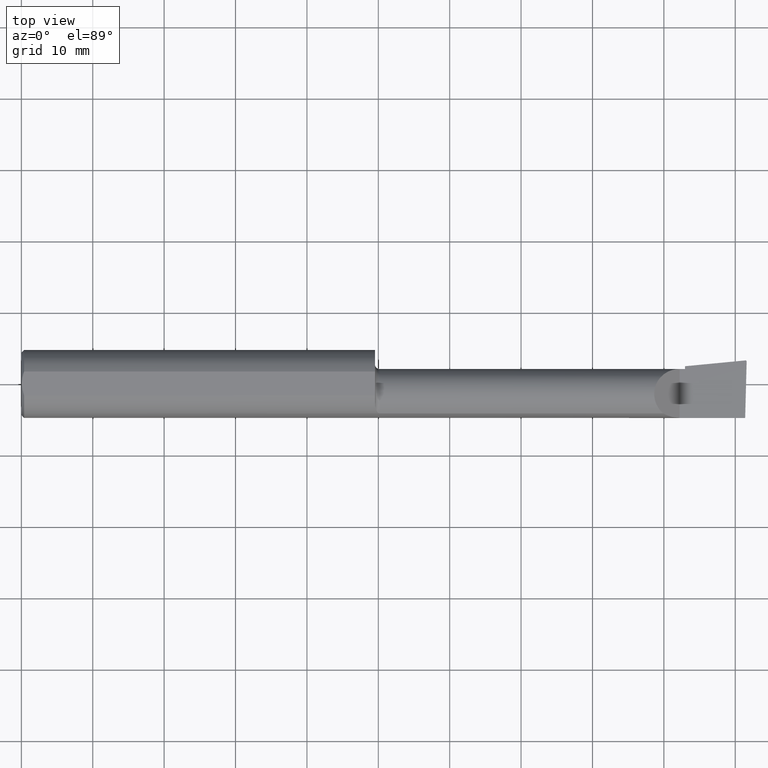
[diagram: clean part render]
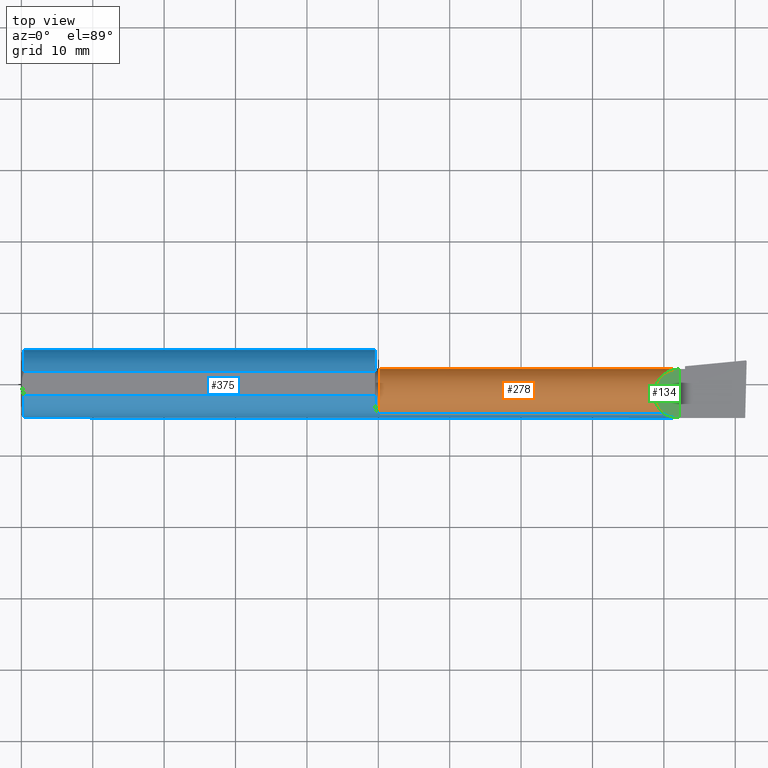
[diagram: same view with three faces highlighted in distinct colors, each labeled with its STEP entity id]
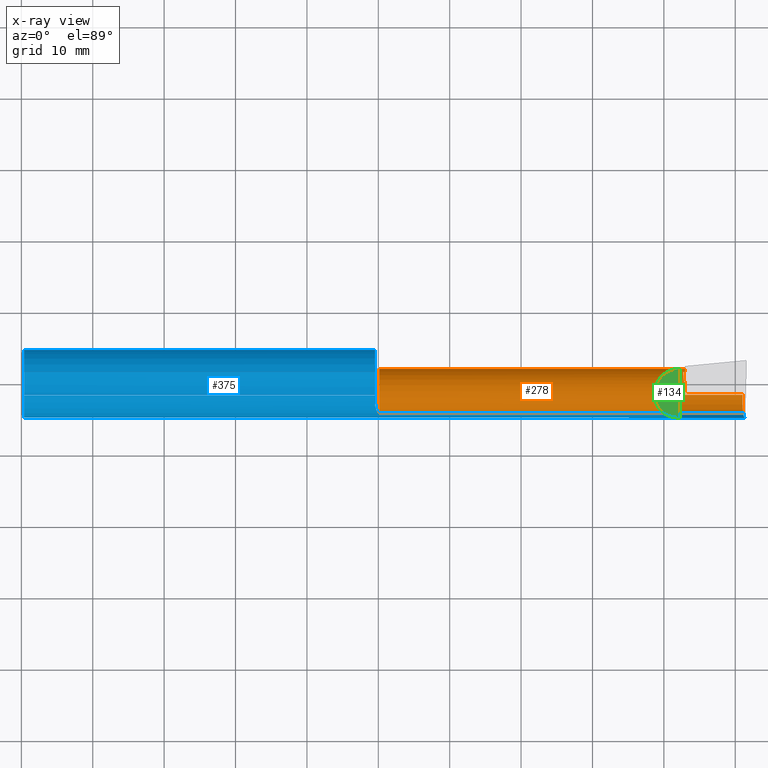
[diagram: x-ray of the same camera — body ghosted, the three highlighted faces saturated]
A machine part, top view with three faces highlighted in distinct colors.
The next image is the same camera in x-ray (body ghosted, the three faces saturated) — at least one of them is partly hidden behind the body in this view.
Their STEP definitions:

[orange] entity #278 — the highlighted cylindrical surface (edge-blend (fillet) strip) has radius 3.5573 mm, axis along (-1, -0, -0).
#2 = DIRECTION ( 'NONE',  ( -1.000000000000000000, 5.691349986800549142E-18, -0.000000000000000000 ) ) ;
#3 = ORIENTED_EDGE ( 'NONE', *, *, #478, .T. ) ;
#13 = AXIS2_PLACEMENT_3D ( 'NONE', #141, #158, #690 ) ;
#14 = LINE ( 'NONE', #670, #515 ) ;
#15 =( BOUNDED_CURVE ( )  B_SPLINE_CURVE ( 3, ( #481, #705, #602, #642 ),
 .UNSPECIFIED., .F., .T. ) 
 B_SPLINE_CURVE_WITH_KNOTS ( ( 4, 4 ),
 ( 0.4889314207010859170, 1.042347087928808147 ),
 .UNSPECIFIED. ) 
 CURVE ( )  GEOMETRIC_REPRESENTATION_ITEM ( )  RATIONAL_B_SPLINE_CURVE ( ( 1.000000000000000000, 0.9746400248777661313, 0.9746400248777661313, 1.000000000000000000 ) ) 
 REPRESENTATION_ITEM ( '' )  );
#20 = CARTESIAN_POINT ( 'NONE',  ( 3.659999999999999698, -0.05739999999999999963, 0.000000000000000000 ) ) ;
#23 = AXIS2_PLACEMENT_3D ( 'NONE', #244, #686, #195 ) ;
#30 = DIRECTION ( 'NONE',  ( 0.000000000000000000, -1.000000000000000000, 0.000000000000000000 ) ) ;
#36 = CIRCLE ( 'NONE', #13, 0.1400500000000002299 ) ;
#47 = ORIENTED_EDGE ( 'NONE', *, *, #142, .F. ) ;
#54 = CARTESIAN_POINT ( 'NONE',  ( 3.475085956200449022, 0.08265000000000018165, 0.1549140437995492336 ) ) ;
#55 = CARTESIAN_POINT ( 'NONE',  ( 3.977873865042411250, -0.05739999999999999963, -0.1400500000000000633 ) ) ;
#58 = LINE ( 'NONE', #177, #580 ) ;
#61 = EDGE_CURVE ( 'NONE', #304, #289, #58, .T. ) ;
#66 = CARTESIAN_POINT ( 'NONE',  ( 3.977873865042411250, -0.05739999999999999963, -0.1400500000000000633 ) ) ;
#71 = CARTESIAN_POINT ( 'NONE',  ( 1.975000000000000089, -0.1635956445993032859, -0.09130436773856125121 ) ) ;
#80 = FACE_OUTER_BOUND ( 'NONE', #436, .T. ) ;
#81 = EDGE_CURVE ( 'NONE', #208, #94, #182, .T. ) ;
#92 = CARTESIAN_POINT ( 'NONE',  ( 1.975000000000000089, -0.1635956445993030084, 0.09130436773856158428 ) ) ;
#94 = VERTEX_POINT ( 'NONE', #55 ) ;
#107 = CARTESIAN_POINT ( 'NONE',  ( 3.977925907309857845, -0.1365595166907234981, -0.1227499502647109025 ) ) ;
#109 = LINE ( 'NONE', #275, #567 ) ;
#114 = CARTESIAN_POINT ( 'NONE',  ( 1.975000000000000089, -0.05740000000000000657, 0.000000000000000000 ) ) ;
#118 = EDGE_CURVE ( 'NONE', #392, #485, #132, .T. ) ;
#131 = CIRCLE ( 'NONE', #509, 0.1400499999999998413 ) ;
#132 =( BOUNDED_CURVE ( )  B_SPLINE_CURVE ( 3, ( #334, #507, #456, #553 ),
 .UNSPECIFIED., .F., .F. ) 
 B_SPLINE_CURVE_WITH_KNOTS ( ( 4, 4 ),
 ( 3.403716554974003827, 3.413688882750591347 ),
 .UNSPECIFIED. ) 
 CURVE ( )  GEOMETRIC_REPRESENTATION_ITEM ( )  RATIONAL_B_SPLINE_CURVE ( ( 1.000000000000000000, 0.9999917127403961103, 0.9999917127403961103, 1.000000000000000000 ) ) 
 REPRESENTATION_ITEM ( '' )  );
#141 = CARTESIAN_POINT ( 'NONE',  ( 3.659999999999999698, -0.05739999999999999963, 0.000000000000000000 ) ) ;
#142 = EDGE_CURVE ( 'NONE', #94, #564, #14, .T. ) ;
#148 = EDGE_CURVE ( 'NONE', #268, #247, #626, .T. ) ;
#151 = CARTESIAN_POINT ( 'NONE',  ( 3.538695632261437130, -0.1635956445993027863, 0.09130436773856213939 ) ) ;
#158 = DIRECTION ( 'NONE',  ( -1.000000000000000000, -4.268512490100411279E-18, -0.000000000000000000 ) ) ;
#160 = ORIENTED_EDGE ( 'NONE', *, *, #239, .T. ) ;
#163 = AXIS2_PLACEMENT_3D ( 'NONE', #20, #238, #30 ) ;
#165 = LINE ( 'NONE', #613, #308 ) ;
#177 = CARTESIAN_POINT ( 'NONE',  ( 2.817500000000000338, -0.1635956445993029806, 0.09130436773856190347 ) ) ;
#182 =( BOUNDED_CURVE ( )  B_SPLINE_CURVE ( 3, ( #617, #107, #406, #66 ),
 .UNSPECIFIED., .F., .F. ) 
 B_SPLINE_CURVE_WITH_KNOTS ( ( 4, 4 ),
 ( 5.632580117768156036, 6.493234751459283416 ),
 .UNSPECIFIED. ) 
 CURVE ( )  GEOMETRIC_REPRESENTATION_ITEM ( )  RATIONAL_B_SPLINE_CURVE ( ( 1.000000000000000000, 0.9392195014330944058, 0.9392195014330944058, 1.000000000000000000 ) ) 
 REPRESENTATION_ITEM ( '' )  );
#195 = DIRECTION ( 'NONE',  ( 4.268512490100412049E-18, -1.000000000000000000, 0.000000000000000000 ) ) ;
#204 = ORIENTED_EDGE ( 'NONE', *, *, #454, .T. ) ;
#208 = VERTEX_POINT ( 'NONE', #235 ) ;
#223 = CARTESIAN_POINT ( 'NONE',  ( 3.656639924654159213, 0.06539171466162843616, -0.06735725908305588427 ) ) ;
#235 = CARTESIAN_POINT ( 'NONE',  ( 3.981080296960509024, -0.1635956445993029806, -0.09130436773856190347 ) ) ;
#238 = DIRECTION ( 'NONE',  ( -1.000000000000000000, -4.268512490100411279E-18, -0.000000000000000000 ) ) ;
#239 = EDGE_CURVE ( 'NONE', #284, #247, #331, .T. ) ;
#244 = CARTESIAN_POINT ( 'NONE',  ( 0.000000000000000000, -0.05740000000000001351, 0.000000000000000000 ) ) ;
#247 = VERTEX_POINT ( 'NONE', #419 ) ;
#260 = ORIENTED_EDGE ( 'NONE', *, *, #81, .F. ) ;
#266 = VERTEX_POINT ( 'NONE', #582 ) ;
#268 = VERTEX_POINT ( 'NONE', #459 ) ;
#275 = CARTESIAN_POINT ( 'NONE',  ( -5.978051742385470281E-19, 0.08265000000000000124, 1.790477306702064235E-16 ) ) ;
#277 = ORIENTED_EDGE ( 'NONE', *, *, #118, .F. ) ;
#278 = ADVANCED_FACE ( 'NONE', ( #80 ), #303, .T. ) ;
#279 = CARTESIAN_POINT ( 'NONE',  ( 3.629999999999999893, 0.08264999999999990410, -1.383850883036508279E-16 ) ) ;
#282 = DIRECTION ( 'NONE',  ( -1.000000000000000000, -4.268512490100411279E-18, -0.000000000000000000 ) ) ;
#284 = VERTEX_POINT ( 'NONE', #533 ) ;
#285 = CARTESIAN_POINT ( 'NONE',  ( 3.538695632261437130, -0.1635956445993027863, 0.09130436773856213939 ) ) ;
#287 = CARTESIAN_POINT ( 'NONE',  ( 3.653159806206770721, 0.06582018291673077948, -0.06657020401570135082 ) ) ;
#289 = VERTEX_POINT ( 'NONE', #151 ) ;
#291 = DIRECTION ( 'NONE',  ( 1.000000000000000000, 4.268512490100411279E-18, 0.000000000000000000 ) ) ;
#303 = CYLINDRICAL_SURFACE ( 'NONE', #23, 0.1400500000000000078 ) ;
#304 = VERTEX_POINT ( 'NONE', #92 ) ;
#308 = VECTOR ( 'NONE', #671, 39.37007874015748143 ) ;
#313 = ORIENTED_EDGE ( 'NONE', *, *, #148, .F. ) ;
#322 = EDGE_CURVE ( 'NONE', #268, #485, #15, .T. ) ;
#331 = CIRCLE ( 'NONE', #163, 0.1400500000000002299 ) ;
#334 = CARTESIAN_POINT ( 'NONE',  ( 3.659999999999999698, 0.01441505128072246775, -0.1202356058309985848 ) ) ;
#348 = DIRECTION ( 'NONE',  ( 0.000000000000000000, -1.000000000000000000, 0.000000000000000000 ) ) ;
#358 = EDGE_CURVE ( 'NONE', #392, #564, #36, .T. ) ;
#392 = VERTEX_POINT ( 'NONE', #655 ) ;
#395 = CARTESIAN_POINT ( 'NONE',  ( 3.659999999999999698, 0.06495571228477972636, -0.06814016562413273415 ) ) ;
#406 = CARTESIAN_POINT ( 'NONE',  ( 3.976787929832031221, -0.09887019258091177265, -0.1400500000000001188 ) ) ;
#412 =( BOUNDED_CURVE ( )  B_SPLINE_CURVE ( 3, ( #285, #557, #54, #279 ),
 .UNSPECIFIED., .F., .T. ) 
 B_SPLINE_CURVE_WITH_KNOTS ( ( 4, 4 ),
 ( 5.422530673488460629, 7.853981633974483678 ),
 .UNSPECIFIED. ) 
 CURVE ( )  GEOMETRIC_REPRESENTATION_ITEM ( )  RATIONAL_B_SPLINE_CURVE ( ( 1.000000000000000000, 0.5651045289226865886, 0.5651045289226865886, 1.000000000000000000 ) ) 
 REPRESENTATION_ITEM ( '' )  );
#419 = CARTESIAN_POINT ( 'NONE',  ( 3.659999999999999698, 0.06495571228477972636, -0.06814016562413273415 ) ) ;
#424 = ORIENTED_EDGE ( 'NONE', *, *, #545, .F. ) ;
#436 = EDGE_LOOP ( 'NONE', ( #260, #438, #424, #593, #204, #3, #160, #313, #694, #277, #550, #47 ) ) ;
#438 = ORIENTED_EDGE ( 'NONE', *, *, #536, .T. ) ;
#454 = EDGE_CURVE ( 'NONE', #289, #266, #412, .T. ) ;
#456 = CARTESIAN_POINT ( 'NONE',  ( 3.656476415630202315, 0.01361451005324048474, -0.1207110541441177992 ) ) ;
#459 = CARTESIAN_POINT ( 'NONE',  ( 3.649559965233992287, 0.06624107758111216770, -0.06577907292278788176 ) ) ;
#478 = EDGE_CURVE ( 'NONE', #266, #284, #109, .T. ) ;
#481 = CARTESIAN_POINT ( 'NONE',  ( 3.649559965233992287, 0.06624107758111216770, -0.06577907292278788176 ) ) ;
#485 = VERTEX_POINT ( 'NONE', #511 ) ;
#507 = CARTESIAN_POINT ( 'NONE',  ( 3.658254417281639803, 0.01401537333401180543, -0.1204743278970654419 ) ) ;
#509 = AXIS2_PLACEMENT_3D ( 'NONE', #114, #282, #348 ) ;
#511 = CARTESIAN_POINT ( 'NONE',  ( 3.654666039249971909, 0.01321247140458279429, -0.1209457786867197543 ) ) ;
#515 = VECTOR ( 'NONE', #2, 39.37007874015748143 ) ;
#533 = CARTESIAN_POINT ( 'NONE',  ( 3.659999999999999698, 0.08265000000000023717, 1.790477306702066946E-16 ) ) ;
#536 = EDGE_CURVE ( 'NONE', #208, #604, #165, .T. ) ;
#545 = EDGE_CURVE ( 'NONE', #304, #604, #131, .T. ) ;
#550 = ORIENTED_EDGE ( 'NONE', *, *, #358, .T. ) ;
#553 = CARTESIAN_POINT ( 'NONE',  ( 3.654666039249971909, 0.01321247140458279429, -0.1209457786867197543 ) ) ;
#557 = CARTESIAN_POINT ( 'NONE',  ( 3.421229036482944075, -0.06260079402492399470, 0.2087709635170538480 ) ) ;
#564 = VERTEX_POINT ( 'NONE', #624 ) ;
#565 = DIRECTION ( 'NONE',  ( 1.000000000000000000, 4.268512490100411279E-18, 0.000000000000000000 ) ) ;
#566 = CARTESIAN_POINT ( 'NONE',  ( 3.649559965233992287, 0.06624107758111216770, -0.06577907292278788176 ) ) ;
#567 = VECTOR ( 'NONE', #565, 39.37007874015748143 ) ;
#580 = VECTOR ( 'NONE', #291, 39.37007874015748143 ) ;
#582 = CARTESIAN_POINT ( 'NONE',  ( 3.629999999999999893, 0.08264999999999990410, -1.383850883036508279E-16 ) ) ;
#593 = ORIENTED_EDGE ( 'NONE', *, *, #61, .T. ) ;
#602 = CARTESIAN_POINT ( 'NONE',  ( 3.652489847161463299, 0.03581309036639279686, -0.1077507289917616212 ) ) ;
#604 = VERTEX_POINT ( 'NONE', #71 ) ;
#613 = CARTESIAN_POINT ( 'NONE',  ( 2.817500000000000338, -0.1635956445993029806, -0.09130436773856190347 ) ) ;
#617 = CARTESIAN_POINT ( 'NONE',  ( 3.981080296960509024, -0.1635956445993029806, -0.09130436773856190347 ) ) ;
#624 = CARTESIAN_POINT ( 'NONE',  ( 3.659999999999999698, -0.05739999999999999963, -0.1400500000000000633 ) ) ;
#626 =( BOUNDED_CURVE ( )  B_SPLINE_CURVE ( 3, ( #566, #287, #223, #395 ),
 .UNSPECIFIED., .F., .F. ) 
 B_SPLINE_CURVE_WITH_KNOTS ( ( 4, 4 ),
 ( 2.860273215522870061, 2.879468752205585513 ),
 .UNSPECIFIED. ) 
 CURVE ( )  GEOMETRIC_REPRESENTATION_ITEM ( )  RATIONAL_B_SPLINE_CURVE ( ( 1.000000000000000000, 0.9999692945166647196, 0.9999692945166647196, 1.000000000000000000 ) ) 
 REPRESENTATION_ITEM ( '' )  );
#642 = CARTESIAN_POINT ( 'NONE',  ( 3.654666039249971909, 0.01321247140458279429, -0.1209457786867197543 ) ) ;
#655 = CARTESIAN_POINT ( 'NONE',  ( 3.659999999999999698, 0.01441505128072246775, -0.1202356058309985848 ) ) ;
#670 = CARTESIAN_POINT ( 'NONE',  ( 4.000000000000000000, -0.05739999999999999963, -0.1400500000000000633 ) ) ;
#671 = DIRECTION ( 'NONE',  ( -1.000000000000000000, -4.268512490100411279E-18, -0.000000000000000000 ) ) ;
#686 = DIRECTION ( 'NONE',  ( -1.000000000000000000, -4.268512490100411279E-18, -0.000000000000000000 ) ) ;
#690 = DIRECTION ( 'NONE',  ( 0.000000000000000000, -1.000000000000000000, 0.000000000000000000 ) ) ;
#694 = ORIENTED_EDGE ( 'NONE', *, *, #322, .T. ) ;
#705 = CARTESIAN_POINT ( 'NONE',  ( 3.650743536083989049, 0.05394922433140206947, -0.08888335082963778888 ) ) ;

[blue] entity #375 — the highlighted cylindrical surface (edge-blend (fillet) strip) has radius 4.7587 mm, axis along (-1, -0, -0).
#1 = VERTEX_POINT ( 'NONE', #52 ) ;
#4 = CARTESIAN_POINT ( 'NONE',  ( 1.970903862568969656, -0.1628809688430622182, 0.09258733509388467064 ) ) ;
#17 = CARTESIAN_POINT ( 'NONE',  ( 1.950000000000000178, -0.09715400696864148755, -0.1601908905959922580 ) ) ;
#21 = DIRECTION ( 'NONE',  ( -1.000000000000000000, -0.000000000000000000, -0.000000000000000000 ) ) ;
#34 = DIRECTION ( 'NONE',  ( -1.000000000000000000, -0.000000000000000000, -0.000000000000000000 ) ) ;
#42 = CARTESIAN_POINT ( 'NONE',  ( 1.950000000000000178, -0.09715400696864148755, 0.1601908905959922580 ) ) ;
#51 = CARTESIAN_POINT ( 'NONE',  ( 1.950000000000000178, -0.06597272163553666302, 0.1753499999999999781 ) ) ;
#52 = CARTESIAN_POINT ( 'NONE',  ( 1.950000000000000178, -0.09715400696864148755, 0.1601908905959922580 ) ) ;
#56 = ORIENTED_EDGE ( 'NONE', *, *, #588, .T. ) ;
#57 = CARTESIAN_POINT ( 'NONE',  ( 1.953025912205684111, -0.1310442973014116497, 0.1341609063345041430 ) ) ;
#58 = LINE ( 'NONE', #177, #580 ) ;
#60 = LINE ( 'NONE', #495, #123 ) ;
#61 = EDGE_CURVE ( 'NONE', #304, #289, #58, .T. ) ;
#65 = CARTESIAN_POINT ( 'NONE',  ( 1.975000000000000089, -0.1635956445993030084, 0.09130436773856158428 ) ) ;
#71 = CARTESIAN_POINT ( 'NONE',  ( 1.975000000000000089, -0.1635956445993032859, -0.09130436773856125121 ) ) ;
#73 = CARTESIAN_POINT ( 'NONE',  ( 1.967975941902153414, -0.1612443294219081946, -0.09540922431498183309 ) ) ;
#74 = EDGE_CURVE ( 'NONE', #99, #289, #631, .T. ) ;
#91 = VERTEX_POINT ( 'NONE', #563 ) ;
#92 = CARTESIAN_POINT ( 'NONE',  ( 1.975000000000000089, -0.1635956445993030084, 0.09130436773856158428 ) ) ;
#99 = VERTEX_POINT ( 'NONE', #171 ) ;
#100 = VECTOR ( 'NONE', #407, 39.37007874015748143 ) ;
#101 = CARTESIAN_POINT ( 'NONE',  ( 1.950000000000000178, 0.000000000000000000, 0.000000000000000000 ) ) ;
#116 = CARTESIAN_POINT ( 'NONE',  ( 3.538695632261437130, -0.1635956445993027863, 0.09130436773856213939 ) ) ;
#120 = CARTESIAN_POINT ( 'NONE',  ( 3.629999999999999893, -0.1873499999999999888, -1.383850883036508279E-16 ) ) ;
#121 = CARTESIAN_POINT ( 'NONE',  ( 1.958072954143140310, -0.1479074971576201103, 0.1152872342625229363 ) ) ;
#123 = VECTOR ( 'NONE', #219, 39.37007874015748143 ) ;
#125 = CARTESIAN_POINT ( 'NONE',  ( 0.000000000000000000, -0.06597272163553657975, 0.1753499999999999781 ) ) ;
#126 = CARTESIAN_POINT ( 'NONE',  ( 1.975000000000000089, -0.1635956445993032859, -0.09130436773856125121 ) ) ;
#130 = CARTESIAN_POINT ( 'NONE',  ( 1.953041727949558215, -0.1311116946065054023, -0.1340922927843367918 ) ) ;
#136 = LINE ( 'NONE', #521, #218 ) ;
#137 = VERTEX_POINT ( 'NONE', #350 ) ;
#143 = ORIENTED_EDGE ( 'NONE', *, *, #380, .T. ) ;
#151 = CARTESIAN_POINT ( 'NONE',  ( 3.538695632261437130, -0.1635956445993027863, 0.09130436773856213939 ) ) ;
#165 = LINE ( 'NONE', #613, #308 ) ;
#171 = CARTESIAN_POINT ( 'NONE',  ( 3.629999999999999893, -0.1873499999999999888, -1.383850883036508279E-16 ) ) ;
#174 = CARTESIAN_POINT ( 'NONE',  ( 1.962204638458736383, -0.1550630761760524445, 0.1052254855377559722 ) ) ;
#176 = CARTESIAN_POINT ( 'NONE',  ( 1.950000000000000178, 0.06597272163553663527, 0.1753499999999999781 ) ) ;
#177 = CARTESIAN_POINT ( 'NONE',  ( 2.817500000000000338, -0.1635956445993029806, 0.09130436773856190347 ) ) ;
#178 = CARTESIAN_POINT ( 'NONE',  ( 0.01499999999999999424, 0.000000000000000000, 0.000000000000000000 ) ) ;
#188 = DIRECTION ( 'NONE',  ( 0.000000000000000000, 0.000000000000000000, 1.000000000000000000 ) ) ;
#190 = CARTESIAN_POINT ( 'NONE',  ( 1.956145841430604770, -0.1426194794824340306, -0.1217813759115465855 ) ) ;
#191 = AXIS2_PLACEMENT_3D ( 'NONE', #178, #21, #188 ) ;
#198 = AXIS2_PLACEMENT_3D ( 'NONE', #539, #34, #205 ) ;
#201 = CARTESIAN_POINT ( 'NONE',  ( 1.949999999999999734, -0.1045012500212956219, 0.1557348687830033274 ) ) ;
#202 = EDGE_CURVE ( 'NONE', #604, #654, #386, .T. ) ;
#205 = DIRECTION ( 'NONE',  ( 0.000000000000000000, 0.000000000000000000, 1.000000000000000000 ) ) ;
#208 = VERTEX_POINT ( 'NONE', #235 ) ;
#209 = DIRECTION ( 'NONE',  ( 0.000000000000000000, 1.000000000000000000, 0.000000000000000000 ) ) ;
#213 = ORIENTED_EDGE ( 'NONE', *, *, #61, .F. ) ;
#214 = DIRECTION ( 'NONE',  ( 1.000000000000000000, 4.268512490100411279E-18, 0.000000000000000000 ) ) ;
#218 = VECTOR ( 'NONE', #628, 39.37007874015748143 ) ;
#219 = DIRECTION ( 'NONE',  ( 1.000000000000000000, 0.000000000000000000, 0.000000000000000000 ) ) ;
#221 = CARTESIAN_POINT ( 'NONE',  ( 1.966855994529494778, -0.1603175578889970976, 0.09696363432848430219 ) ) ;
#231 = AXIS2_PLACEMENT_3D ( 'NONE', #257, #598, #695 ) ;
#232 = CARTESIAN_POINT ( 'NONE',  ( 1.950000000000000178, -0.09715400696864148755, -0.1601908905959922580 ) ) ;
#235 = CARTESIAN_POINT ( 'NONE',  ( 3.981080296960509024, -0.1635956445993029806, -0.09130436773856190347 ) ) ;
#257 = CARTESIAN_POINT ( 'NONE',  ( 1.950000000000000178, 0.000000000000000000, 0.000000000000000000 ) ) ;
#261 = CYLINDRICAL_SURFACE ( 'NONE', #198, 0.1873499999999999888 ) ;
#271 = CARTESIAN_POINT ( 'NONE',  ( 1.972800914500665304, -0.1635956445997549802, 0.09130436773775216230 ) ) ;
#280 = CARTESIAN_POINT ( 'NONE',  ( 3.597861799102314073, -0.1873499999999999888, 0.03213820089768522348 ) ) ;
#289 = VERTEX_POINT ( 'NONE', #151 ) ;
#291 = DIRECTION ( 'NONE',  ( 1.000000000000000000, 4.268512490100411279E-18, 0.000000000000000000 ) ) ;
#292 = CIRCLE ( 'NONE', #679, 0.1873499999999999888 ) ;
#294 = CARTESIAN_POINT ( 'NONE',  ( 1.958068207442171582, -0.1478915270140212235, -0.1153063024254922520 ) ) ;
#296 = EDGE_CURVE ( 'NONE', #654, #544, #445, .T. ) ;
#301 = CARTESIAN_POINT ( 'NONE',  ( 1.966814909379089205, -0.1602818635245159828, -0.09702252612905271079 ) ) ;
#304 = VERTEX_POINT ( 'NONE', #92 ) ;
#308 = VECTOR ( 'NONE', #671, 39.37007874015748143 ) ;
#319 = B_SPLINE_CURVE_WITH_KNOTS ( 'NONE', 3,
 ( #42, #201, #405, #669, #57, #609, #121, #174, #338, #221, #562, #4, #271, #65 ),
 .UNSPECIFIED., .F., .F.,
 ( 4, 2, 2, 2, 2, 2, 4 ),
 ( 0.0002471551878304244871, 0.0008987327522055642889, 0.001550310316580703982, 0.002201887880955843892, 0.002527676663143413414, 0.002690571054237198608, 0.002853465445330983803 ),
 .UNSPECIFIED. ) ;
#321 = ORIENTED_EDGE ( 'NONE', *, *, #390, .F. ) ;
#328 = ORIENTED_EDGE ( 'NONE', *, *, #449, .F. ) ;
#330 = CARTESIAN_POINT ( 'NONE',  ( 0.01499999999999999424, 0.000000000000000000, 0.000000000000000000 ) ) ;
#335 = EDGE_CURVE ( 'NONE', #551, #1, #650, .T. ) ;
#338 = CARTESIAN_POINT ( 'NONE',  ( 1.963764108097883376, -0.1573043405450772758, 0.1018329020719633826 ) ) ;
#350 = CARTESIAN_POINT ( 'NONE',  ( 0.01499999999999999424, 0.06597272163553663527, 0.1753499999999999781 ) ) ;
#357 = CARTESIAN_POINT ( 'NONE',  ( 1.950384441902395460, -0.1115101367984842329, -0.1507946173152221458 ) ) ;
#361 = LINE ( 'NONE', #125, #100 ) ;
#365 = CARTESIAN_POINT ( 'NONE',  ( 1.972779935319433742, -0.1635956445993032027, -0.09130436773856144550 ) ) ;
#368 = CARTESIAN_POINT ( 'NONE',  ( 3.984117089522338340, -0.1792580844883770730, -0.06324101202936152633 ) ) ;
#375 = ADVANCED_FACE ( 'NONE', ( #490 ), #261, .T. ) ;
#376 = ORIENTED_EDGE ( 'NONE', *, *, #482, .T. ) ;
#380 = EDGE_CURVE ( 'NONE', #208, #704, #701, .T. ) ;
#385 = DIRECTION ( 'NONE',  ( 0.000000000000000000, 0.000000000000000000, 1.000000000000000000 ) ) ;
#386 = B_SPLINE_CURVE_WITH_KNOTS ( 'NONE', 3,
 ( #126, #365, #571, #73, #301, #522, #467, #294, #190, #130, #413, #357, #574, #17 ),
 .UNSPECIFIED., .F., .F.,
 ( 4, 2, 2, 2, 2, 2, 4 ),
 ( 1.968340875534775581E-07, 0.0001667114270246259429, 0.0003332260199616984158, 0.0006662552058358424401, 0.001332313577584123224, 0.001998371949332404009, 0.002664430321080684793 ),
 .UNSPECIFIED. ) ;
#390 = EDGE_CURVE ( 'NONE', #501, #91, #292, .T. ) ;
#405 = CARTESIAN_POINT ( 'NONE',  ( 1.950383728133730399, -0.1114837668894153866, 0.1508119329971094880 ) ) ;
#407 = DIRECTION ( 'NONE',  ( -1.000000000000000000, -0.000000000000000000, -0.000000000000000000 ) ) ;
#413 = CARTESIAN_POINT ( 'NONE',  ( 1.951903396790307443, -0.1248165254919064715, -0.1399798634953943743 ) ) ;
#420 = EDGE_LOOP ( 'NONE', ( #422, #143, #56, #496, #213, #328, #689, #601, #321, #715, #376, #638, #505 ) ) ;
#422 = ORIENTED_EDGE ( 'NONE', *, *, #536, .F. ) ;
#425 = DIRECTION ( 'NONE',  ( -1.000000000000000000, -0.000000000000000000, -0.000000000000000000 ) ) ;
#430 = CARTESIAN_POINT ( 'NONE',  ( 3.981080296960509024, -0.1635956445993029806, -0.09130436773856190347 ) ) ;
#445 = CIRCLE ( 'NONE', #231, 0.1873499999999999888 ) ;
#449 = EDGE_CURVE ( 'NONE', #1, #304, #319, .T. ) ;
#467 = CARTESIAN_POINT ( 'NONE',  ( 1.962184598714912243, -0.1550322129197698184, -0.1052705638704078961 ) ) ;
#482 = EDGE_CURVE ( 'NONE', #137, #544, #60, .T. ) ;
#490 = FACE_OUTER_BOUND ( 'NONE', #420, .T. ) ;
#495 = CARTESIAN_POINT ( 'NONE',  ( 0.000000000000000000, 0.06597272163553663527, 0.1753499999999999781 ) ) ;
#496 = ORIENTED_EDGE ( 'NONE', *, *, #74, .T. ) ;
#501 = VERTEX_POINT ( 'NONE', #658 ) ;
#505 = ORIENTED_EDGE ( 'NONE', *, *, #202, .F. ) ;
#518 = CARTESIAN_POINT ( 'NONE',  ( 3.991672876940992154, -0.1873499999999999888, -1.700101953615524951E-16 ) ) ;
#521 = CARTESIAN_POINT ( 'NONE',  ( 1.565719721143680372E-32, -0.1873499999999999610, 1.790477306702064235E-16 ) ) ;
#522 = CARTESIAN_POINT ( 'NONE',  ( 1.963743174082349663, -0.1572750258711010096, -0.1018777902325210677 ) ) ;
#536 = EDGE_CURVE ( 'NONE', #208, #604, #165, .T. ) ;
#539 = CARTESIAN_POINT ( 'NONE',  ( 0.000000000000000000, 0.000000000000000000, 0.000000000000000000 ) ) ;
#544 = VERTEX_POINT ( 'NONE', #176 ) ;
#551 = VERTEX_POINT ( 'NONE', #51 ) ;
#562 = CARTESIAN_POINT ( 'NONE',  ( 1.968001859868117265, -0.1612625562479372554, 0.09537826053888155686 ) ) ;
#563 = CARTESIAN_POINT ( 'NONE',  ( 0.01499999999999997863, -0.06597272163553657975, 0.1753499999999999781 ) ) ;
#571 = CARTESIAN_POINT ( 'NONE',  ( 1.970881499230870082, -0.1628722075910992717, -0.09260290410947831508 ) ) ;
#574 = CARTESIAN_POINT ( 'NONE',  ( 1.949999999999999956, -0.1045082199249683513, -0.1557306416133591720 ) ) ;
#580 = VECTOR ( 'NONE', #291, 39.37007874015748143 ) ;
#586 = CARTESIAN_POINT ( 'NONE',  ( 3.987725449370724373, -0.1873499999999999888, -0.03213820089768524429 ) ) ;
#588 = EDGE_CURVE ( 'NONE', #704, #99, #136, .T. ) ;
#598 = DIRECTION ( 'NONE',  ( 1.000000000000000000, 4.268512490100411279E-18, 0.000000000000000000 ) ) ;
#601 = ORIENTED_EDGE ( 'NONE', *, *, #643, .T. ) ;
#604 = VERTEX_POINT ( 'NONE', #71 ) ;
#609 = CARTESIAN_POINT ( 'NONE',  ( 1.956142321956750196, -0.1426151417460931881, 0.1217894822571230495 ) ) ;
#613 = CARTESIAN_POINT ( 'NONE',  ( 2.817500000000000338, -0.1635956445993029806, -0.09130436773856190347 ) ) ;
#619 = CARTESIAN_POINT ( 'NONE',  ( 3.566758987970637840, -0.1792580844883770452, 0.06324101202936160959 ) ) ;
#620 = CIRCLE ( 'NONE', #191, 0.1873499999999999888 ) ;
#628 = DIRECTION ( 'NONE',  ( -1.000000000000000000, -0.000000000000000000, -0.000000000000000000 ) ) ;
#631 =( BOUNDED_CURVE ( )  B_SPLINE_CURVE ( 3, ( #120, #280, #619, #116 ),
 .UNSPECIFIED., .F., .F. ) 
 B_SPLINE_CURVE_WITH_KNOTS ( ( 4, 4 ),
 ( 4.712388980384689674, 5.221437360734126898 ),
 .UNSPECIFIED. ) 
 CURVE ( )  GEOMETRIC_REPRESENTATION_ITEM ( )  RATIONAL_B_SPLINE_CURVE ( ( 1.000000000000000000, 0.9785221379938655595, 0.9785221379938655595, 1.000000000000000000 ) ) 
 REPRESENTATION_ITEM ( '' )  );
#632 = EDGE_CURVE ( 'NONE', #137, #501, #620, .T. ) ;
#638 = ORIENTED_EDGE ( 'NONE', *, *, #296, .F. ) ;
#639 = AXIS2_PLACEMENT_3D ( 'NONE', #101, #214, #209 ) ;
#643 = EDGE_CURVE ( 'NONE', #551, #91, #361, .T. ) ;
#649 = CARTESIAN_POINT ( 'NONE',  ( 3.991672876940992154, -0.1873499999999999888, -1.700101953615524951E-16 ) ) ;
#650 = CIRCLE ( 'NONE', #639, 0.1873499999999999888 ) ;
#654 = VERTEX_POINT ( 'NONE', #232 ) ;
#658 = CARTESIAN_POINT ( 'NONE',  ( 0.01499999999999999424, 0.000000000000000000, -0.1873499999999999888 ) ) ;
#669 = CARTESIAN_POINT ( 'NONE',  ( 1.951891754936545098, -0.1247344934163569091, 0.1400506178720498929 ) ) ;
#671 = DIRECTION ( 'NONE',  ( -1.000000000000000000, -4.268512490100411279E-18, -0.000000000000000000 ) ) ;
#679 = AXIS2_PLACEMENT_3D ( 'NONE', #330, #425, #385 ) ;
#689 = ORIENTED_EDGE ( 'NONE', *, *, #335, .F. ) ;
#695 = DIRECTION ( 'NONE',  ( 0.000000000000000000, 1.000000000000000000, 0.000000000000000000 ) ) ;
#701 =( BOUNDED_CURVE ( )  B_SPLINE_CURVE ( 3, ( #430, #368, #586, #649 ),
 .UNSPECIFIED., .F., .F. ) 
 B_SPLINE_CURVE_WITH_KNOTS ( ( 4, 4 ),
 ( 0.8516985021657640376, 1.360746882515199152 ),
 .UNSPECIFIED. ) 
 CURVE ( )  GEOMETRIC_REPRESENTATION_ITEM ( )  RATIONAL_B_SPLINE_CURVE ( ( 1.000000000000000000, 0.9785221379938656705, 0.9785221379938656705, 1.000000000000000000 ) ) 
 REPRESENTATION_ITEM ( '' )  );
#704 = VERTEX_POINT ( 'NONE', #518 ) ;
#715 = ORIENTED_EDGE ( 'NONE', *, *, #632, .F. ) ;

[green] entity #134 — the highlighted planar face has unit normal (-0.7071, 0, -0.7071).
#8 = ORIENTED_EDGE ( 'NONE', *, *, #262, .T. ) ;
#49 = VECTOR ( 'NONE', #416, 39.37007874015748143 ) ;
#54 = CARTESIAN_POINT ( 'NONE',  ( 3.475085956200449022, 0.08265000000000018165, 0.1549140437995492336 ) ) ;
#74 = EDGE_CURVE ( 'NONE', #99, #289, #631, .T. ) ;
#99 = VERTEX_POINT ( 'NONE', #171 ) ;
#116 = CARTESIAN_POINT ( 'NONE',  ( 3.538695632261437130, -0.1635956445993027863, 0.09130436773856213939 ) ) ;
#120 = CARTESIAN_POINT ( 'NONE',  ( 3.629999999999999893, -0.1873499999999999888, -1.383850883036508279E-16 ) ) ;
#134 = ADVANCED_FACE ( 'NONE', ( #166 ), #718, .F. ) ;
#151 = CARTESIAN_POINT ( 'NONE',  ( 3.538695632261437130, -0.1635956445993027863, 0.09130436773856213939 ) ) ;
#166 = FACE_OUTER_BOUND ( 'NONE', #309, .T. ) ;
#171 = CARTESIAN_POINT ( 'NONE',  ( 3.629999999999999893, -0.1873499999999999888, -1.383850883036508279E-16 ) ) ;
#258 = ORIENTED_EDGE ( 'NONE', *, *, #454, .F. ) ;
#262 = EDGE_CURVE ( 'NONE', #99, #266, #360, .T. ) ;
#266 = VERTEX_POINT ( 'NONE', #582 ) ;
#279 = CARTESIAN_POINT ( 'NONE',  ( 3.629999999999999893, 0.08264999999999990410, -1.383850883036508279E-16 ) ) ;
#280 = CARTESIAN_POINT ( 'NONE',  ( 3.597861799102314073, -0.1873499999999999888, 0.03213820089768522348 ) ) ;
#285 = CARTESIAN_POINT ( 'NONE',  ( 3.538695632261437130, -0.1635956445993027863, 0.09130436773856213939 ) ) ;
#289 = VERTEX_POINT ( 'NONE', #151 ) ;
#309 = EDGE_LOOP ( 'NONE', ( #258, #492, #8 ) ) ;
#355 = AXIS2_PLACEMENT_3D ( 'NONE', #614, #453, #569 ) ;
#360 = LINE ( 'NONE', #576, #49 ) ;
#412 =( BOUNDED_CURVE ( )  B_SPLINE_CURVE ( 3, ( #285, #557, #54, #279 ),
 .UNSPECIFIED., .F., .T. ) 
 B_SPLINE_CURVE_WITH_KNOTS ( ( 4, 4 ),
 ( 5.422530673488460629, 7.853981633974483678 ),
 .UNSPECIFIED. ) 
 CURVE ( )  GEOMETRIC_REPRESENTATION_ITEM ( )  RATIONAL_B_SPLINE_CURVE ( ( 1.000000000000000000, 0.5651045289226865886, 0.5651045289226865886, 1.000000000000000000 ) ) 
 REPRESENTATION_ITEM ( '' )  );
#416 = DIRECTION ( 'NONE',  ( -0.000000000000000000, 1.000000000000000000, -0.000000000000000000 ) ) ;
#453 = DIRECTION ( 'NONE',  ( -0.7071067811865443531, 0.000000000000000000, -0.7071067811865507924 ) ) ;
#454 = EDGE_CURVE ( 'NONE', #289, #266, #412, .T. ) ;
#492 = ORIENTED_EDGE ( 'NONE', *, *, #74, .F. ) ;
#557 = CARTESIAN_POINT ( 'NONE',  ( 3.421229036482944075, -0.06260079402492399470, 0.2087709635170538480 ) ) ;
#569 = DIRECTION ( 'NONE',  ( -0.7071067811865507924, 0.000000000000000000, 0.7071067811865443531 ) ) ;
#576 = CARTESIAN_POINT ( 'NONE',  ( 3.629999999999999893, -0.2500000000000000555, -1.383850883036508279E-16 ) ) ;
#582 = CARTESIAN_POINT ( 'NONE',  ( 3.629999999999999893, 0.08264999999999990410, -1.383850883036508279E-16 ) ) ;
#614 = CARTESIAN_POINT ( 'NONE',  ( 3.629999999999999893, -0.2500000000000000555, -1.383850883036508279E-16 ) ) ;
#619 = CARTESIAN_POINT ( 'NONE',  ( 3.566758987970637840, -0.1792580844883770452, 0.06324101202936160959 ) ) ;
#631 =( BOUNDED_CURVE ( )  B_SPLINE_CURVE ( 3, ( #120, #280, #619, #116 ),
 .UNSPECIFIED., .F., .F. ) 
 B_SPLINE_CURVE_WITH_KNOTS ( ( 4, 4 ),
 ( 4.712388980384689674, 5.221437360734126898 ),
 .UNSPECIFIED. ) 
 CURVE ( )  GEOMETRIC_REPRESENTATION_ITEM ( )  RATIONAL_B_SPLINE_CURVE ( ( 1.000000000000000000, 0.9785221379938655595, 0.9785221379938655595, 1.000000000000000000 ) ) 
 REPRESENTATION_ITEM ( '' )  );
#718 = PLANE ( 'NONE',  #355 ) ;